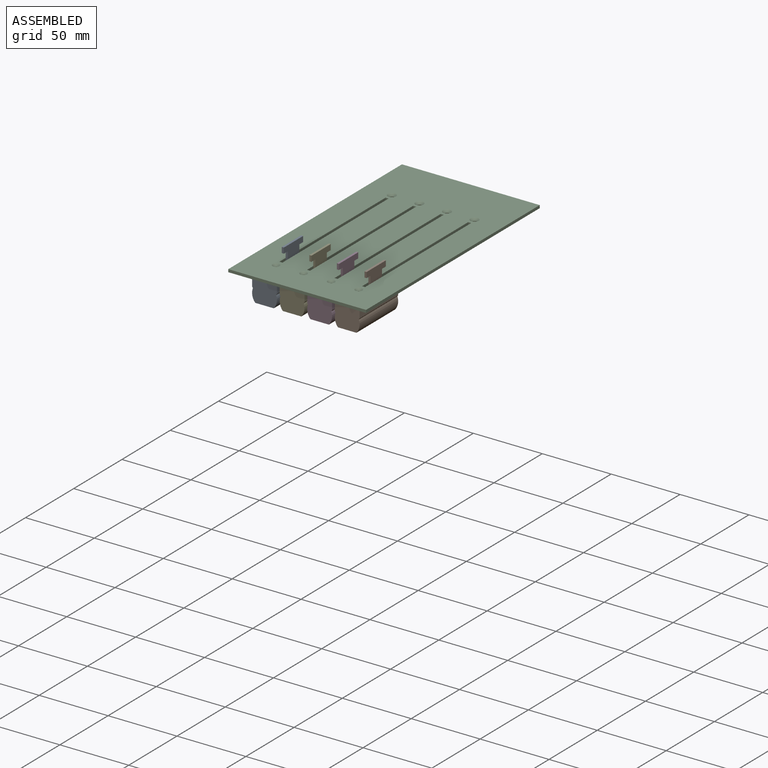
[diagram: assembled view]
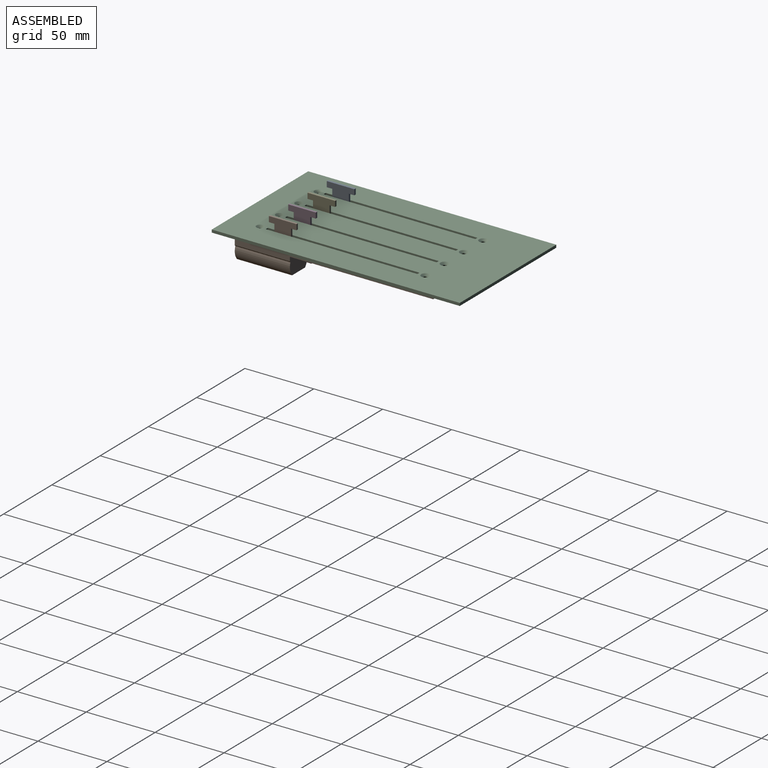
[diagram: assembled view, second angle]
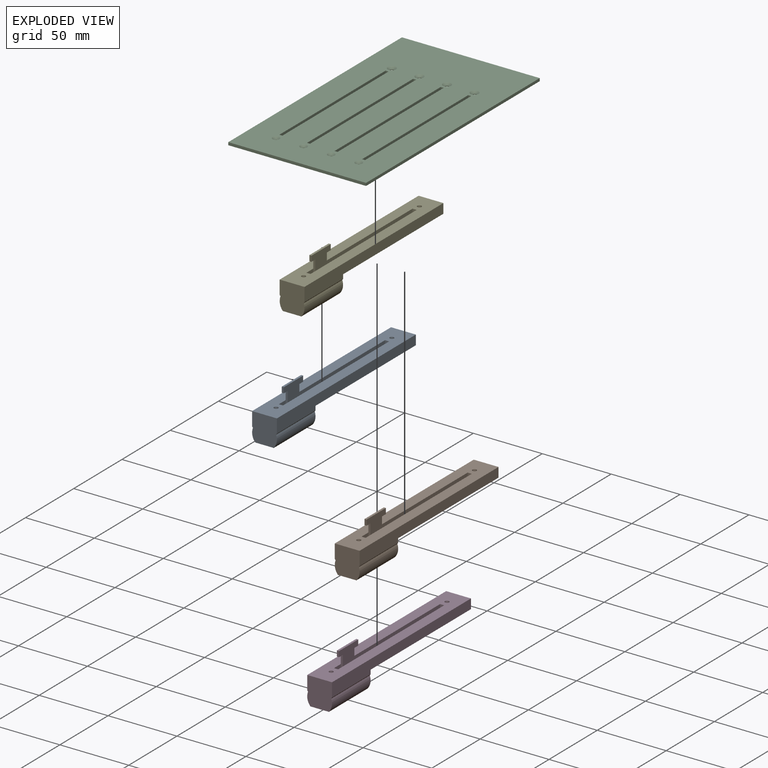
[diagram: exploded view]
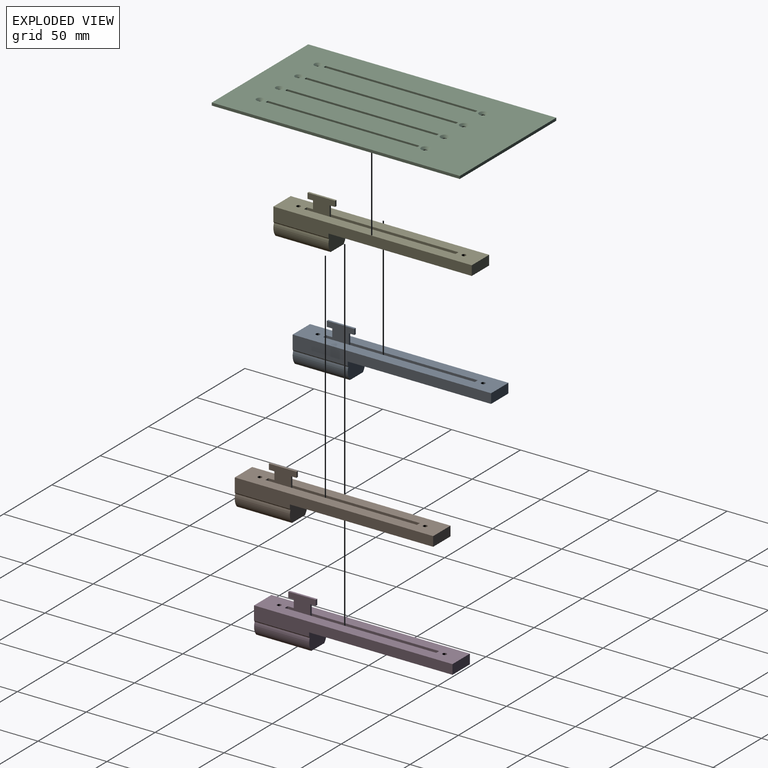
[diagram: exploded view, second angle]
ASSEMBLY  parts=5 mates=4
PART A: 29 faces, bbox 18x144x31 mm
  f0: plane 110x3mm, normal (0,0,1), area 312mm2, adj f8,f9,f10,f11,f20,f21,f22,f23
  f1: cylinder r=9mm len=40mm, axis (0,-1,0), area 392.5mm2, adj f3,f16,f17,f18
  f2: plane 104x18mm, normal (0,0,-1), area 1864.9mm2, adj f4,f5,f6,f13,f16
  f3: plane 20x18mm, normal (0,-1,0), area 349.7mm2, adj f1,f4,f6,f7,f15,f17,f18,f19
  f4: plane 144x9.99mm, normal (1,0,0), area 1127.6mm2, adj f2,f3,f5,f7,f16,f19
  f5: plane 18x7mm, normal (0,1,0), area 126mm2, adj f2,f4,f6,f7
  f6: plane 144x9.99mm, normal (-1,0,0), area 1127.6mm2, adj f2,f3,f5,f7,f16,f18
  f7: plane 144x18mm, normal (0,0,1), area 2247.9mm2, adj f3,f4,f5,f6,f8,f9,f10,f11
  f8: plane 110x3mm, normal (-1,0,0), area 330mm2, adj f0,f7,f9,f11
  f9: plane 3x3mm, normal (0,-1,0), area 9mm2, adj f0,f7,f8,f10
  f10: plane 110x3mm, normal (1,0,0), area 330mm2, adj f0,f7,f9,f11
  f11: plane 3x3mm, normal (0,1,0), area 9mm2, adj f0,f7,f8,f10
  f12: cylinder r=1.5mm len=7mm, axis (0,0,1), area 66mm2, adj f7,f14
  f13: cylinder r=1.5mm len=7mm, axis (0,0,1), area 66mm2, adj f2,f7
  f14: plane 3x3mm, normal (0,0,1), area 7.1mm2, adj f12
  f15: cylinder r=9mm len=40mm, axis (0,-1,0), area 392.5mm2, adj f3,f16,f17,f19
  f16: plane 18x13mm, normal (0,1,0), area 223.7mm2, adj f1,f2,f4,f6,f15,f17,f18,f19
  f17: plane 40x13.42mm, normal (0,0,-1), area 536.7mm2, adj f1,f3,f15,f16
  f18: plane 40x0.84mm, normal (-0.82,0,-0.57), area 40.7mm2, adj f1,f3,f6,f16
  f19: plane 40x0.84mm, normal (0.82,0,-0.57), area 40.7mm2, adj f3,f4,f15,f16
  f20: plane 20x14mm, normal (1,0,0), area 200mm2, adj f0,f21,f23,f24,f25,f26,f27,f28
  f21: plane 10x1.5mm, normal (0,1,0), area 15mm2, adj f0,f20,f22,f24
  f22: plane 20x14mm, normal (-1,0,0), area 200mm2, adj f0,f21,f23,f24,f25,f26,f27,f28
  f23: plane 10x1.5mm, normal (0,-1,0), area 15mm2, adj f0,f20,f22,f28
  f24: plane 4x1.5mm, normal (0,0,-1), area 6mm2, adj f20,f21,f22,f26
  f25: plane 4x1.5mm, normal (0,-1,0), area 6mm2, adj f20,f22,f27,f28
  f26: plane 4x1.5mm, normal (0,1,0), area 6mm2, adj f20,f22,f24,f27
  f27: plane 20x1.5mm, normal (0,0,1), area 30mm2, adj f20,f22,f25,f26
  f28: plane 4x1.5mm, normal (0,0,-1), area 6mm2, adj f20,f22,f23,f25
PART B: same geometry as A
PART C: 38 faces, bbox 100x180x2 mm
  f0: plane 100x2mm, normal (0,-1,0), area 200mm2, adj f1,f3,f4,f5
  f1: plane 180x2mm, normal (1,0,0), area 360mm2, adj f0,f2,f4,f5
  f2: plane 100x2mm, normal (0,1,0), area 200mm2, adj f1,f3,f4,f5
  f3: plane 180x2mm, normal (-1,0,0), area 360mm2, adj f0,f2,f4,f5
  f4: plane 180x100mm, normal (0,0,1), area 16834mm2, adj f0,f1,f2,f3,f6,f7,f8,f9
  f5: plane 180x100mm, normal (0,0,-1), area 16988.5mm2, adj f0,f1,f2,f3,f6,f7,f8,f9
  f6: plane 110x2mm, normal (-1,0,0), area 220mm2, adj f4,f5,f7,f9
  f7: plane 2.2x2mm, normal (0,-1,0), area 4.4mm2, adj f4,f5,f6,f8
  f8: plane 110x2mm, normal (1,0,0), area 220mm2, adj f4,f5,f7,f9
  f9: plane 2.2x2mm, normal (0,1,0), area 4.4mm2, adj f4,f5,f6,f8
  f10: cylinder r=1.5mm len=3mm, axis (0,0,1), area 4.7mm2, adj f5,f37
  f11: cylinder r=1.1mm len=2.2mm, axis (0,0,1), area 3.5mm2, adj f5,f30
  f12: plane 110x2mm, normal (-1,0,0), area 220mm2, adj f4,f5,f13,f15
  f13: plane 2.2x2mm, normal (0,-1,0), area 4.4mm2, adj f4,f5,f12,f14
  f14: plane 110x2mm, normal (1,0,0), area 220mm2, adj f4,f5,f13,f15
  f15: plane 2.2x2mm, normal (0,1,0), area 4.4mm2, adj f4,f5,f12,f14
  f16: cylinder r=1.5mm len=3mm, axis (0,0,1), area 4.7mm2, adj f5,f36
  f17: cylinder r=1.1mm len=2.2mm, axis (0,0,1), area 3.5mm2, adj f5,f31
  f18: plane 110x2mm, normal (-1,0,0), area 220mm2, adj f4,f5,f19,f21
  f19: plane 2.2x2mm, normal (0,-1,0), area 4.4mm2, adj f4,f5,f18,f20
  f20: plane 110x2mm, normal (1,0,0), area 220mm2, adj f4,f5,f19,f21
  f21: plane 2.2x2mm, normal (0,1,0), area 4.4mm2, adj f4,f5,f18,f20
  f22: cylinder r=1.5mm len=3mm, axis (0,0,1), area 4.7mm2, adj f5,f35
  f23: cylinder r=1.1mm len=2.2mm, axis (0,0,1), area 3.5mm2, adj f5,f32
  f24: plane 110x2mm, normal (-1,0,0), area 220mm2, adj f4,f5,f25,f27
  f25: plane 2.2x2mm, normal (0,-1,0), area 4.4mm2, adj f4,f5,f24,f26
  f26: plane 110x2mm, normal (1,0,0), area 220mm2, adj f4,f5,f25,f27
  f27: plane 2.2x2mm, normal (0,1,0), area 4.4mm2, adj f4,f5,f24,f26
  f28: cylinder r=1.5mm len=3mm, axis (0,0,1), area 4.7mm2, adj f5,f34
  f29: cylinder r=1.1mm len=2.2mm, axis (0,0,1), area 3.5mm2, adj f5,f33
  f30: cone r=1.1mm half-angle=45deg, axis (0,0,1), area 24.7mm2, adj f4,f11
  f31: cone r=1.1mm half-angle=45deg, axis (0,0,1), area 24.7mm2, adj f4,f17
  f32: cone r=1.1mm half-angle=45deg, axis (0,0,1), area 24.7mm2, adj f4,f23
  f33: cone r=1.1mm half-angle=45deg, axis (0,0,1), area 24.7mm2, adj f4,f29
  f34: cone r=1.5mm half-angle=45deg, axis (0,0,1), area 30mm2, adj f4,f28
  f35: cone r=1.5mm half-angle=45deg, axis (0,0,1), area 30mm2, adj f4,f22
  f36: cone r=1.5mm half-angle=45deg, axis (0,0,1), area 30mm2, adj f4,f16
  f37: cone r=1.5mm half-angle=45deg, axis (0,0,1), area 30mm2, adj f4,f10
PART D: same geometry as A
PART E: same geometry as A
PLACE A t=(-38.4,-3.8,-27.48)mm
PLACE B t=(21.6,-3.8,-27.48)mm
PLACE C t=(-8.4,5.2,-20.48)mm
PLACE D t=(1.6,-3.8,-27.48)mm
PLACE E t=(-18.4,-3.8,-27.48)mm
MATE fastened C.f10 <-> A.f13  axis (0,0,-1) through (-38.4,56.2,-20.48)mm
MATE fastened C.f22 <-> D.f13  axis (0,0,1) through (1.6,56.2,-20.48)mm
MATE fastened C.f28 <-> B.f13  axis (0,0,-1) through (21.6,56.2,-20.48)mm
MATE fastened C.f16 <-> E.f13  axis (0,0,-1) through (-18.4,56.2,-20.48)mm
